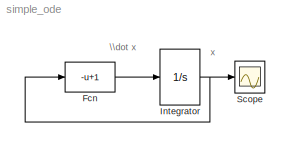
MODEL simple_ode
KIND model
BLOCK [Fcn] Fcn
  Expr = -u+1
  SID = 1
BLOCK [Integrator] Integrator
  InitialCondition = 2
  Ports = [1, 1]
  SID = 2
BLOCK [Scope] Scope
  NumInputPorts = 1
  Ports = [1]
  SID = 3
  ScopeSpecificationString = Simulink.scopes.TimeScopeBlockCfg('CurrentConfiguration', extmgr.ConfigurationSet(extmgr.Configuration('Core','General UI',true),extmgr.Configuration('Core','Source UI',true),extmgr.Configuration('Sources','WiredSimulink',true,'DataLoggingSaveFormat','StructureWithTime','DataLoggingLimitDataPoints',true,'DataLoggingDecimation','1','DataLoggingDecimateData',true),extmgr.Configuration('Visuals','Tim...<+1692ch>
ANNOTATION (root): \\dot x
ANNOTATION (root): x
LINE Fcn:1 -> Integrator:1
NET Integrator:1 -> Fcn:1, Scope:1
note: NET lines group one-source signal fan-out (src -> all destinations, sorted); 1:1 wires keep LINE
